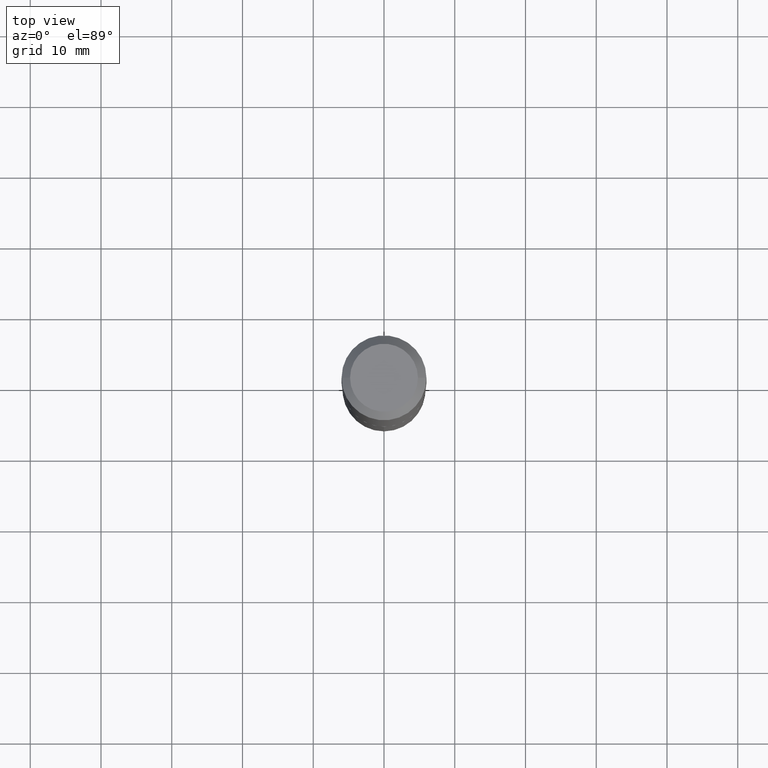
[diagram: clean part render]
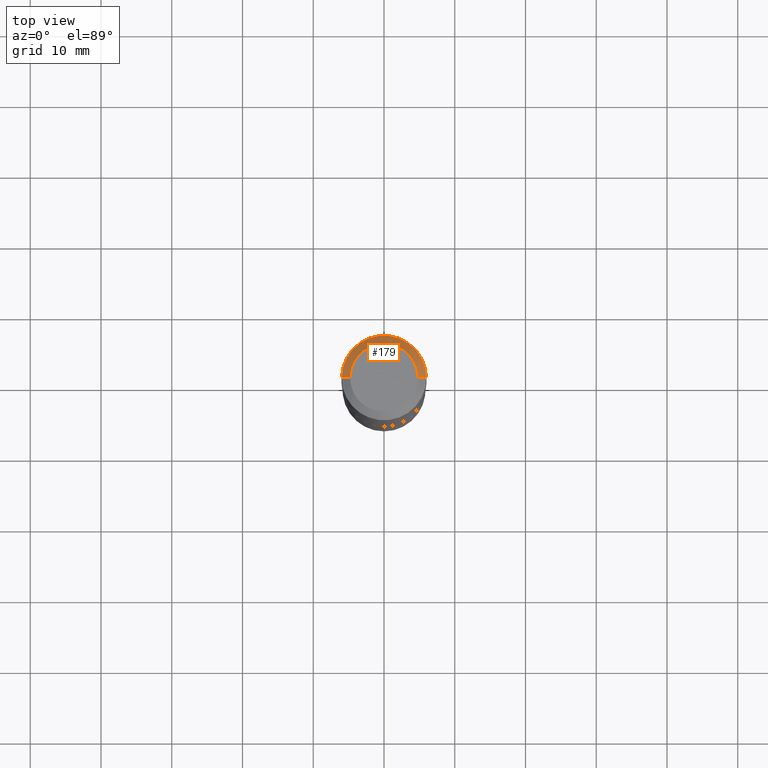
[diagram: same view with one face highlighted and labeled with its STEP entity id]
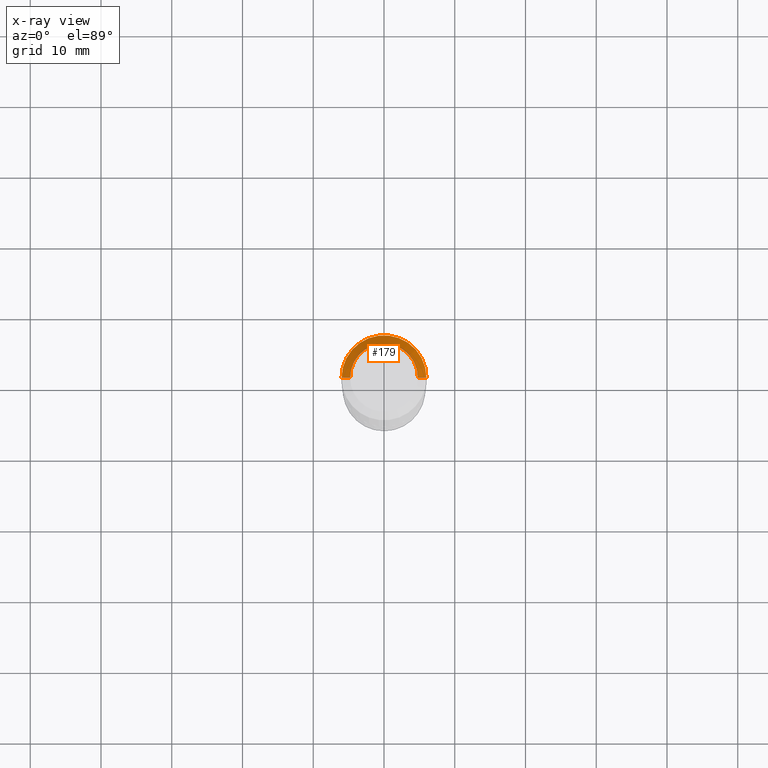
[diagram: x-ray of the same camera — body ghosted, the highlighted face saturated]
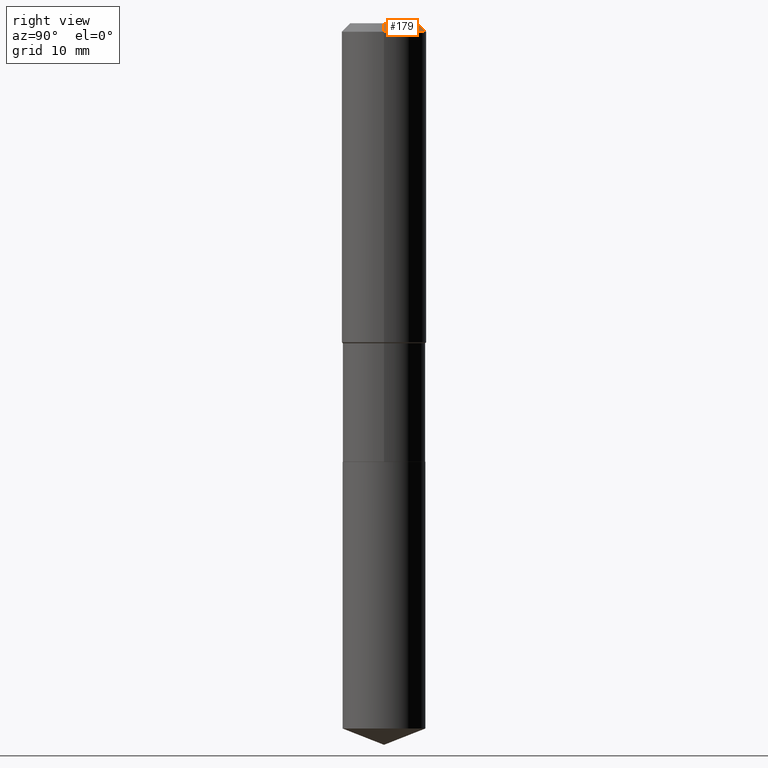
[diagram: same view with one face highlighted and labeled with its STEP entity id]
A machine part, top view. The second image highlights one B-rep face of the part: STEP entity #179.
The next image is the same camera in x-ray: the body ghosted, the highlighted face saturated — about 0% of this face is hidden behind the body in this view.
A second angle (right view) of the same face is appended — the face is thin or edge-on in the first view.
In plain terms, the highlighted conical surface has half-angle 45 deg.
Its self-contained STEP definition (entity closure, byte-faithful):
#4 = EDGE_CURVE ( 'NONE', #344, #413, #25, .T. ) ;
#22 = DIRECTION ( 'NONE',  ( 1.000000000000000000, -6.982962677686266711E-15, 4.876185090822587894E-29 ) ) ;
#25 = CIRCLE ( 'NONE', #370, 0.2361999999999999933 ) ;
#26 = AXIS2_PLACEMENT_3D ( 'NONE', #72, #478, #251 ) ;
#55 = DIRECTION ( 'NONE',  ( -2.445468806185136597E-29, 3.491481338843145583E-15, 1.000000000000000000 ) ) ;
#72 = CARTESIAN_POINT ( 'NONE',  ( 1.155239464041865506E-30, -1.649375784469511859E-16, -0.04724000000000028177 ) ) ;
#106 = DIRECTION ( 'NONE',  ( -0.7071067811865453523, 2.468850131082234184E-15, -0.7071067811865496822 ) ) ;
#113 = EDGE_CURVE ( 'NONE', #233, #413, #217, .T. ) ;
#115 = ORIENTED_EDGE ( 'NONE', *, *, #428, .T. ) ;
#125 = CARTESIAN_POINT ( 'NONE',  ( 1.155239464041865506E-30, -1.649375784469511859E-16, -0.04724000000000028177 ) ) ;
#142 = AXIS2_PLACEMENT_3D ( 'NONE', #213, #362, #22 ) ;
#153 = CARTESIAN_POINT ( 'NONE',  ( 0.2361999999999999933, -1.814313362916447440E-15, -0.04724000000000028177 ) ) ;
#179 = ADVANCED_FACE ( 'NONE', ( #443 ), #379, .T. ) ;
#202 = EDGE_CURVE ( 'NONE', #393, #233, #256, .T. ) ;
#213 = CARTESIAN_POINT ( 'NONE',  ( -9.427742298522546243E-47, 1.346031739168365344E-32, 3.855188123715862256E-18 ) ) ;
#217 = LINE ( 'NONE', #405, #327 ) ;
#233 = VERTEX_POINT ( 'NONE', #298 ) ;
#234 = DIRECTION ( 'NONE',  ( 1.000000000000000000, -6.982962677686266711E-15, 0.000000000000000000 ) ) ;
#251 = DIRECTION ( 'NONE',  ( -1.000000000000000000, 6.982962677686266711E-15, 0.000000000000000000 ) ) ;
#255 = ORIENTED_EDGE ( 'NONE', *, *, #113, .F. ) ;
#256 = CIRCLE ( 'NONE', #142, 0.1889600000000000168 ) ;
#269 = ORIENTED_EDGE ( 'NONE', *, *, #4, .T. ) ;
#277 = CARTESIAN_POINT ( 'NONE',  ( -0.2361999999999999933, -1.503380257782235439E-15, -0.04724000000000028177 ) ) ;
#280 = DIRECTION ( 'NONE',  ( 0.7071067811865453523, -7.319954787623248157E-15, -0.7071067811865496822 ) ) ;
#298 = CARTESIAN_POINT ( 'NONE',  ( -0.1889600000000000168, 1.401969416799070942E-15, 3.855188123706346622E-18 ) ) ;
#313 = ORIENTED_EDGE ( 'NONE', *, *, #202, .F. ) ;
#327 = VECTOR ( 'NONE', #106, 39.37007874015748143 ) ;
#344 = VERTEX_POINT ( 'NONE', #153 ) ;
#362 = DIRECTION ( 'NONE',  ( -2.445468806185136597E-29, 3.491481338843145583E-15, 1.000000000000000000 ) ) ;
#370 = AXIS2_PLACEMENT_3D ( 'NONE', #125, #55, #234 ) ;
#379 = CONICAL_SURFACE ( 'NONE', #26, 0.2361999999999999933, 0.7853981633974452814 ) ;
#393 = VERTEX_POINT ( 'NONE', #433 ) ;
#395 = VECTOR ( 'NONE', #280, 39.37007874015748143 ) ;
#405 = CARTESIAN_POINT ( 'NONE',  ( -0.2361999999999999933, 1.484438206022545019E-15, -0.04724000000000028177 ) ) ;
#413 = VERTEX_POINT ( 'NONE', #277 ) ;
#427 = LINE ( 'NONE', #469, #395 ) ;
#428 = EDGE_CURVE ( 'NONE', #393, #344, #427, .T. ) ;
#433 = CARTESIAN_POINT ( 'NONE',  ( 0.1889600000000000168, -1.540873453589747738E-15, 3.855188123725863225E-18 ) ) ;
#443 = FACE_OUTER_BOUND ( 'NONE', #452, .T. ) ;
#452 = EDGE_LOOP ( 'NONE', ( #313, #115, #269, #255 ) ) ;
#469 = CARTESIAN_POINT ( 'NONE',  ( 0.2361999999999999933, -1.785387205520586782E-15, -0.04724000000000028177 ) ) ;
#478 = DIRECTION ( 'NONE',  ( 2.445468806185136597E-29, -3.491481338843145583E-15, -1.000000000000000000 ) ) ;